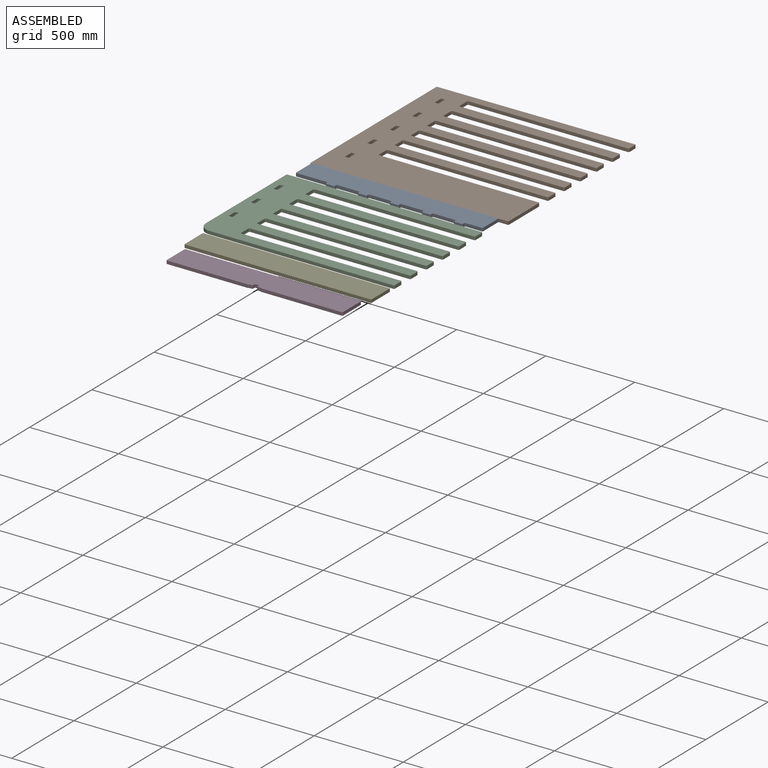
[diagram: assembled view]
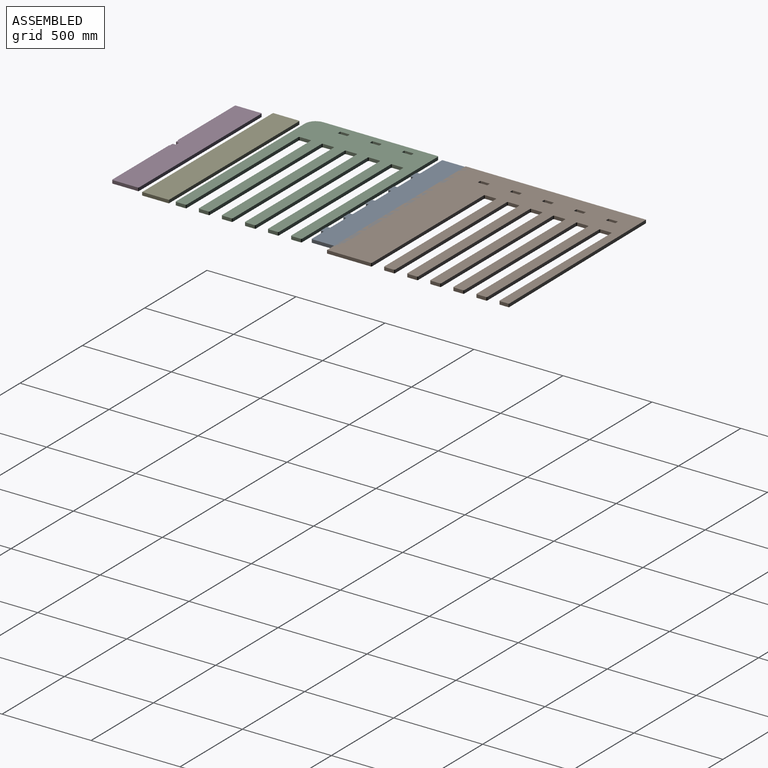
[diagram: assembled view, second angle]
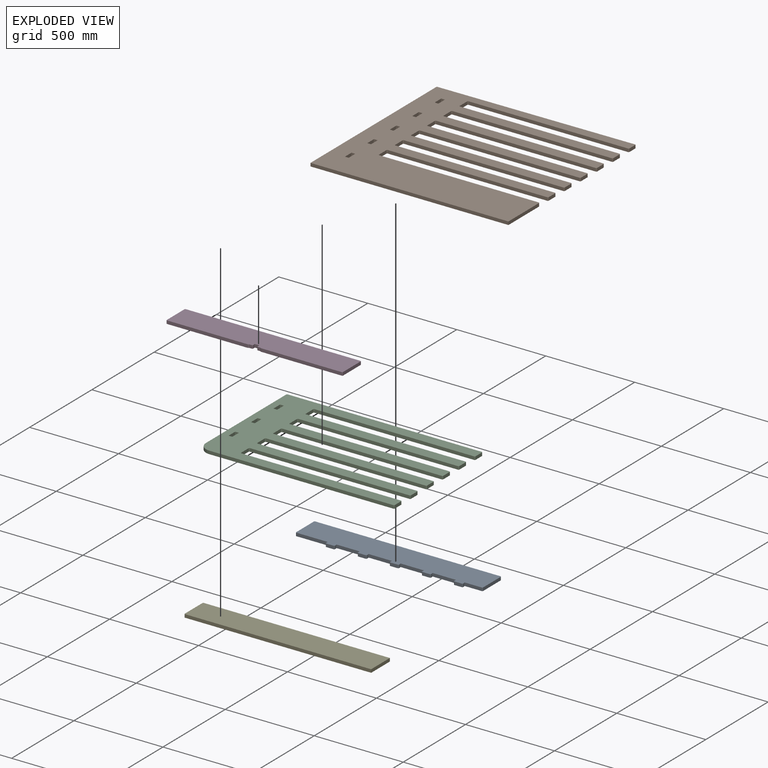
[diagram: exploded view]
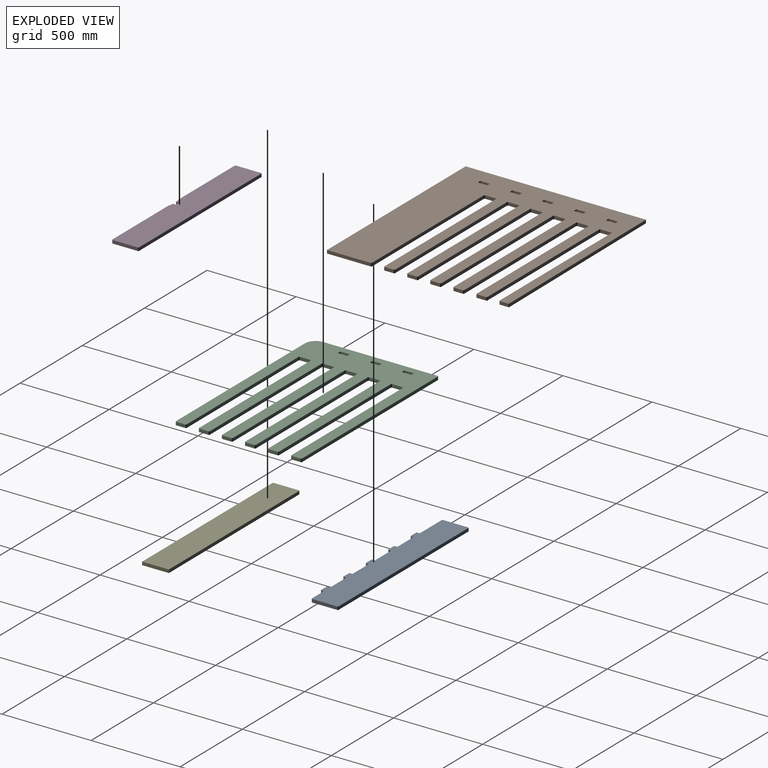
[diagram: exploded view, second angle]
ASSEMBLY  parts=5 mates=3
PART A: 50 faces, bbox 1050x18x168 mm
  f0: plane 18x12.5mm, normal (1,0,0), area 225mm2, adj f19,f20,f34,f36
  f1: plane 18x12.5mm, normal (-1,0,0), area 225mm2, adj f19,f20,f35,f37
  f2: plane 18x12.5mm, normal (-1,0,0), area 225mm2, adj f19,f20,f32,f39
  f3: plane 18x12.5mm, normal (1,0,0), area 225mm2, adj f19,f20,f33,f38
  f4: plane 18x12.5mm, normal (-1,0,0), area 225mm2, adj f19,f20,f30,f41
  f5: plane 18x12.5mm, normal (1,0,0), area 225mm2, adj f19,f20,f31,f40
  f6: plane 18x12.5mm, normal (-1,0,0), area 225mm2, adj f19,f20,f28,f45
  f7: plane 18x12.5mm, normal (1,0,0), area 225mm2, adj f19,f20,f29,f44
  f8: plane 18x12.5mm, normal (-1,0,0), area 225mm2, adj f19,f20,f26,f43
  f9: plane 18x12.5mm, normal (1,0,0), area 225mm2, adj f19,f20,f27,f42
  f10: plane 174.5x18mm, normal (0,0,1), area 3141mm2, adj f19,f20,f26,f48
  f11: plane 127x18mm, normal (0,0,1), area 2286mm2, adj f19,f20,f27,f28
  f12: plane 127x18mm, normal (0,0,1), area 2286mm2, adj f19,f20,f29,f30
  f13: plane 127x18mm, normal (0,0,1), area 2286mm2, adj f19,f20,f31,f32
  f14: plane 127x18mm, normal (0,0,1), area 2286mm2, adj f19,f20,f33,f35
  f15: plane 142x18mm, normal (1,0,0), area 2556mm2, adj f19,f20,f47,f49
  f16: plane 94.5x18mm, normal (0,0,1), area 1701mm2, adj f19,f20,f34,f49
  f17: plane 142x18mm, normal (-1,0,0), area 2556mm2, adj f19,f20,f46,f48
  f18: plane 1042x18mm, normal (0,0,-1), area 18756mm2, adj f19,f20,f46,f47
  f19: plane 1050x168mm, normal (0,1,0), area 161956.8mm2, adj f0,f1,f2,f3,f4,f5,f6,f7
  f20: plane 1050x168mm, normal (0,-1,0), area 161956.8mm2, adj f0,f1,f2,f3,f4,f5,f6,f7
  f21: plane 42x18mm, normal (0,0,1), area 756mm2, adj f19,f20,f42,f43
  f22: plane 42x18mm, normal (0,0,1), area 756mm2, adj f19,f20,f44,f45
  f23: plane 42x18mm, normal (0,0,1), area 756mm2, adj f19,f20,f40,f41
  f24: plane 42x18mm, normal (0,0,1), area 756mm2, adj f19,f20,f38,f39
  f25: plane 42x18mm, normal (0,0,1), area 756mm2, adj f19,f20,f36,f37
  f26: cylinder r=1.5mm len=18mm, axis (0,1,0), area 42.4mm2, adj f8,f10,f19,f20
  f27: cylinder r=1.5mm len=18mm, axis (0,-1,0), area 42.4mm2, adj f9,f11,f19,f20
  f28: cylinder r=1.5mm len=18mm, axis (0,1,0), area 42.4mm2, adj f6,f11,f19,f20
  f29: cylinder r=1.5mm len=18mm, axis (0,-1,0), area 42.4mm2, adj f7,f12,f19,f20
  f30: cylinder r=1.5mm len=18mm, axis (0,1,0), area 42.4mm2, adj f4,f12,f19,f20
  f31: cylinder r=1.5mm len=18mm, axis (0,-1,0), area 42.4mm2, adj f5,f13,f19,f20
  f32: cylinder r=1.5mm len=18mm, axis (0,1,0), area 42.4mm2, adj f2,f13,f19,f20
  f33: cylinder r=1.5mm len=18mm, axis (0,-1,0), area 42.4mm2, adj f3,f14,f19,f20
  f34: cylinder r=1.5mm len=18mm, axis (0,-1,0), area 42.4mm2, adj f0,f16,f19,f20
  f35: cylinder r=1.5mm len=18mm, axis (0,1,0), area 42.4mm2, adj f1,f14,f19,f20
  f36: cylinder r=4mm len=18mm, axis (0,-1,0), area 113.1mm2, adj f0,f19,f20,f25
  f37: cylinder r=4mm len=18mm, axis (0,1,0), area 113.1mm2, adj f1,f19,f20,f25
  f38: cylinder r=4mm len=18mm, axis (0,-1,0), area 113.1mm2, adj f3,f19,f20,f24
  f39: cylinder r=4mm len=18mm, axis (0,1,0), area 113.1mm2, adj f2,f19,f20,f24
  f40: cylinder r=4mm len=18mm, axis (0,-1,0), area 113.1mm2, adj f5,f19,f20,f23
  f41: cylinder r=4mm len=18mm, axis (0,1,0), area 113.1mm2, adj f4,f19,f20,f23
  f42: cylinder r=4mm len=18mm, axis (0,-1,0), area 113.1mm2, adj f9,f19,f20,f21
  f43: cylinder r=4mm len=18mm, axis (0,1,0), area 113.1mm2, adj f8,f19,f20,f21
  f44: cylinder r=4mm len=18mm, axis (0,-1,0), area 113.1mm2, adj f7,f19,f20,f22
  f45: cylinder r=4mm len=18mm, axis (0,1,0), area 113.1mm2, adj f6,f19,f20,f22
  f46: cylinder r=4mm len=18mm, axis (0,1,0), area 113.1mm2, adj f17,f18,f19,f20
  f47: cylinder r=4mm len=18mm, axis (0,-1,0), area 113.1mm2, adj f15,f18,f19,f20
  f48: cylinder r=4mm len=18mm, axis (0,-1,0), area 113.1mm2, adj f10,f17,f19,f20
  f49: cylinder r=4mm len=18mm, axis (0,1,0), area 113.1mm2, adj f15,f16,f19,f20
PART B: 95 faces, bbox 1022x1112.5x18 mm
  f0: plane 1112.5x1022.04mm, normal (0,0,1), area 752829.8mm2, adj f2,f3,f4,f5,f6,f7,f8,f9
  f1: plane 1112.5x1022.04mm, normal (0,0,-1), area 752829.8mm2, adj f2,f3,f4,f5,f6,f7,f8,f9
  f2: plane 46.7x18mm, normal (0,1,0), area 840.7mm2, adj f0,f1,f3,f91
  f3: cylinder r=5mm len=18mm, axis (0,0,-1), area 141.4mm2, adj f0,f1,f2,f4
  f4: plane 895.74x18mm, normal (-1,0,0), area 16123.4mm2, adj f0,f1,f3,f5
  f5: cylinder r=5mm len=18mm, axis (0,0,-1), area 141.4mm2, adj f0,f1,f4,f6
  f6: plane 58.8x18mm, normal (0,1,0), area 1058.4mm2, adj f0,f1,f5,f7
  f7: cylinder r=5mm len=18mm, axis (0,0,-1), area 141.4mm2, adj f0,f1,f6,f8
  f8: plane 895.74x18mm, normal (1,0,0), area 16123.4mm2, adj f0,f1,f7,f9
  f9: cylinder r=5mm len=18mm, axis (0,0,-1), area 141.4mm2, adj f0,f1,f8,f10
  f10: plane 50.8x18mm, normal (0,1,0), area 914.4mm2, adj f0,f1,f9,f11
  f11: cylinder r=5mm len=18mm, axis (0,0,-1), area 141.4mm2, adj f0,f1,f10,f12
  f12: plane 895.74x18mm, normal (-1,0,0), area 16123.4mm2, adj f0,f1,f11,f13
  f13: cylinder r=5mm len=18mm, axis (0,0,-1), area 141.4mm2, adj f0,f1,f12,f14
  f14: plane 58.8x18mm, normal (0,1,0), area 1058.4mm2, adj f0,f1,f13,f15
  f15: cylinder r=5mm len=18mm, axis (0,0,-1), area 141.4mm2, adj f0,f1,f14,f16
  f16: plane 895.74x18mm, normal (1,0,0), area 16123.4mm2, adj f0,f1,f15,f17
  f17: cylinder r=5mm len=18mm, axis (0,0,-1), area 141.4mm2, adj f0,f1,f16,f18
  f18: plane 50.8x18mm, normal (0,1,0), area 914.4mm2, adj f0,f1,f17,f19
  f19: cylinder r=5mm len=18mm, axis (0,0,-1), area 141.4mm2, adj f0,f1,f18,f20
  f20: plane 895.74x18mm, normal (-1,0,0), area 16123.4mm2, adj f0,f1,f19,f21
  f21: cylinder r=5mm len=18mm, axis (0,0,-1), area 141.4mm2, adj f0,f1,f20,f22
  f22: plane 58.8x18mm, normal (0,1,0), area 1058.4mm2, adj f0,f1,f21,f23
  f23: cylinder r=5mm len=18mm, axis (0,0,-1), area 141.4mm2, adj f0,f1,f22,f24
  f24: plane 895.74x18mm, normal (1,0,0), area 16123.4mm2, adj f0,f1,f23,f25
  f25: cylinder r=5mm len=18mm, axis (0,0,-1), area 141.4mm2, adj f0,f1,f24,f26
  f26: plane 50.8x18mm, normal (0,1,0), area 914.4mm2, adj f0,f1,f25,f27
  f27: cylinder r=5mm len=18mm, axis (0,0,-1), area 141.4mm2, adj f0,f1,f26,f28
  f28: plane 895.74x18mm, normal (-1,0,0), area 16123.4mm2, adj f0,f1,f27,f29
  f29: cylinder r=5mm len=18mm, axis (0,0,-1), area 141.4mm2, adj f0,f1,f28,f30
  f30: plane 58.8x18mm, normal (0,1,0), area 1058.4mm2, adj f0,f1,f29,f31
  f31: cylinder r=5mm len=18mm, axis (0,0,-1), area 141.4mm2, adj f0,f1,f30,f32
  f32: plane 895.74x18mm, normal (1,0,0), area 16123.4mm2, adj f0,f1,f31,f33
  f33: cylinder r=5mm len=18mm, axis (0,0,-1), area 141.4mm2, adj f0,f1,f32,f34
  f34: plane 50.8x18mm, normal (0,1,0), area 914.4mm2, adj f0,f1,f33,f35
  f35: cylinder r=5mm len=18mm, axis (0,0,-1), area 141.4mm2, adj f0,f1,f34,f36
  f36: plane 895.74x18mm, normal (-1,0,0), area 16123.4mm2, adj f0,f1,f35,f37
  f37: cylinder r=5mm len=18mm, axis (0,0,-1), area 141.4mm2, adj f0,f1,f36,f38
  f38: plane 58.8x18mm, normal (0,1,0), area 1058.4mm2, adj f0,f1,f37,f39
  f39: cylinder r=5mm len=18mm, axis (0,0,-1), area 141.4mm2, adj f0,f1,f38,f40
  f40: plane 895.74x18mm, normal (1,0,0), area 16123.4mm2, adj f0,f1,f39,f41
  f41: cylinder r=5mm len=18mm, axis (0,0,-1), area 141.4mm2, adj f0,f1,f40,f42
  f42: plane 50.8x18mm, normal (0,1,0), area 914.4mm2, adj f0,f1,f41,f92
  f43: plane 895.74x18mm, normal (-1,0,0), area 16123.4mm2, adj f0,f1,f44,f92
  f44: cylinder r=5mm len=18mm, axis (0,0,-1), area 141.4mm2, adj f0,f1,f43,f45
  f45: plane 58.8x18mm, normal (0,1,0), area 1058.4mm2, adj f0,f1,f44,f46
  f46: cylinder r=5mm len=18mm, axis (0,0,-1), area 141.4mm2, adj f0,f1,f45,f47
  f47: plane 895.74x18mm, normal (1,0,0), area 16123.4mm2, adj f0,f1,f46,f48
  f48: cylinder r=5mm len=18mm, axis (0,0,-1), area 141.4mm2, adj f0,f1,f47,f49
  f49: plane 245x18mm, normal (0,1,0), area 4410mm2, adj f0,f1,f48,f93
  f50: plane 1013.5x18mm, normal (0,-1,0), area 18243.1mm2, adj f0,f1,f93,f94
  f51: plane 18x18mm, normal (1,0,0), area 324mm2, adj f0,f1,f83,f86
  f52: plane 50x18mm, normal (0,1,0), area 900mm2, adj f0,f1,f83,f84
  f53: plane 18x18mm, normal (-1,0,0), area 324mm2, adj f0,f1,f84,f85
  f54: plane 50x18mm, normal (0,-1,0), area 900mm2, adj f0,f1,f85,f86
  f55: plane 18x18mm, normal (1,0,0), area 324mm2, adj f0,f1,f79,f82
  f56: plane 50x18mm, normal (0,1,0), area 900mm2, adj f0,f1,f81,f82
  f57: plane 18x18mm, normal (-1,0,0), area 324mm2, adj f0,f1,f80,f81
  f58: plane 50x18mm, normal (0,-1,0), area 900mm2, adj f0,f1,f79,f80
  f59: plane 18x18mm, normal (1,0,0), area 324mm2, adj f0,f1,f75,f78
  f60: plane 50x18mm, normal (0,1,0), area 900mm2, adj f0,f1,f77,f78
  f61: plane 18x18mm, normal (-1,0,0), area 324mm2, adj f0,f1,f76,f77
  f62: plane 50x18mm, normal (0,-1,0), area 900mm2, adj f0,f1,f75,f76
  f63: plane 18x18mm, normal (-1,0,0), area 324mm2, adj f0,f1,f71,f74
  f64: plane 50x18mm, normal (0,-1,0), area 900mm2, adj f0,f1,f73,f74
  f65: plane 18x18mm, normal (1,0,0), area 324mm2, adj f0,f1,f72,f73
  f66: plane 50x18mm, normal (0,1,0), area 900mm2, adj f0,f1,f71,f72
  f67: plane 18x18mm, normal (1,0,0), area 324mm2, adj f0,f1,f87,f90
  f68: plane 50x18mm, normal (0,1,0), area 900mm2, adj f0,f1,f89,f90
  f69: plane 18x18mm, normal (-1,0,0), area 324mm2, adj f0,f1,f88,f89
  f70: plane 50x18mm, normal (0,-1,0), area 900mm2, adj f0,f1,f87,f88
  f71: cylinder r=1.5mm len=18mm, axis (0,0,1), area 42.4mm2, adj f0,f1,f63,f66
  f72: cylinder r=1.5mm len=18mm, axis (0,0,-1), area 42.4mm2, adj f0,f1,f65,f66
  f73: cylinder r=1.5mm len=18mm, axis (0,0,1), area 42.4mm2, adj f0,f1,f64,f65
  f74: cylinder r=1.5mm len=18mm, axis (0,0,-1), area 42.4mm2, adj f0,f1,f63,f64
  f75: cylinder r=1.5mm len=18mm, axis (0,0,1), area 42.4mm2, adj f0,f1,f59,f62
  f76: cylinder r=1.5mm len=18mm, axis (0,0,-1), area 42.4mm2, adj f0,f1,f61,f62
  f77: cylinder r=1.5mm len=18mm, axis (0,0,1), area 42.4mm2, adj f0,f1,f60,f61
  f78: cylinder r=1.5mm len=18mm, axis (0,0,-1), area 42.4mm2, adj f0,f1,f59,f60
  f79: cylinder r=1.5mm len=18mm, axis (0,0,1), area 42.4mm2, adj f0,f1,f55,f58
  f80: cylinder r=1.5mm len=18mm, axis (0,0,-1), area 42.4mm2, adj f0,f1,f57,f58
  f81: cylinder r=1.5mm len=18mm, axis (0,0,1), area 42.4mm2, adj f0,f1,f56,f57
  f82: cylinder r=1.5mm len=18mm, axis (0,0,-1), area 42.4mm2, adj f0,f1,f55,f56
  f83: cylinder r=1.5mm len=18mm, axis (0,0,-1), area 42.4mm2, adj f0,f1,f51,f52
  f84: cylinder r=1.5mm len=18mm, axis (0,0,1), area 42.4mm2, adj f0,f1,f52,f53
  f85: cylinder r=1.5mm len=18mm, axis (0,0,-1), area 42.4mm2, adj f0,f1,f53,f54
  f86: cylinder r=1.5mm len=18mm, axis (0,0,1), area 42.4mm2, adj f0,f1,f51,f54
  f87: cylinder r=1.5mm len=18mm, axis (0,0,1), area 42.4mm2, adj f0,f1,f67,f70
  f88: cylinder r=1.5mm len=18mm, axis (0,0,-1), area 42.4mm2, adj f0,f1,f69,f70
  f89: cylinder r=1.5mm len=18mm, axis (0,0,1), area 42.4mm2, adj f0,f1,f68,f69
  f90: cylinder r=1.5mm len=18mm, axis (0,0,-1), area 42.4mm2, adj f0,f1,f67,f68
  f91: cylinder r=5mm len=18mm, axis (0,0,1), area 70.7mm2, adj f0,f1,f2,f94
  f92: cylinder r=5mm len=18mm, axis (0,0,-1), area 141.4mm2, adj f0,f1,f42,f43
  f93: plane 1112.5x18mm, normal (-1,0,0), area 20025mm2, adj f0,f1,f49,f50
  f94: plane 1111.04x18mm, normal (1,-0.01,0), area 19999.2mm2, adj f0,f1,f50,f91
PART C: 74 faces, bbox 708.8x1100x18 mm
  f0: plane 1100x708.8mm, normal (0,0,1), area 463810.5mm2, adj f2,f3,f4,f5,f6,f7,f8,f9
  f1: plane 1100x708.8mm, normal (0,0,-1), area 463810.5mm2, adj f2,f3,f4,f5,f6,f7,f8,f9
  f2: plane 896.24x18mm, normal (-1,0,0), area 16132.4mm2, adj f0,f1,f26,f48
  f3: plane 50.8x18mm, normal (0,-1,0), area 914.4mm2, adj f0,f1,f26,f27
  f4: plane 1090x18mm, normal (1,0,0), area 19620mm2, adj f0,f1,f27,f28
  f5: plane 643.8x18mm, normal (0,1,0), area 11588.4mm2, adj f0,f1,f28,f49
  f6: plane 1035x18mm, normal (-1,0,0), area 18630mm2, adj f0,f1,f29,f49
  f7: plane 50.8x18mm, normal (0,-1,0), area 914.4mm2, adj f0,f1,f29,f30
  f8: plane 896.24x18mm, normal (1,0,0), area 16132.4mm2, adj f0,f1,f30,f31
  f9: plane 58.8x18mm, normal (0,-1,0), area 1058.4mm2, adj f0,f1,f31,f32
  f10: plane 896.24x18mm, normal (-1,0,0), area 16132.4mm2, adj f0,f1,f32,f33
  f11: plane 50.8x18mm, normal (0,-1,0), area 914.4mm2, adj f0,f1,f33,f34
  f12: plane 896.24x18mm, normal (1,0,0), area 16132.4mm2, adj f0,f1,f34,f35
  f13: plane 58.8x18mm, normal (0,-1,0), area 1058.4mm2, adj f0,f1,f35,f36
  f14: plane 896.24x18mm, normal (-1,0,0), area 16132.4mm2, adj f0,f1,f36,f37
  f15: plane 50.8x18mm, normal (0,-1,0), area 914.4mm2, adj f0,f1,f37,f38
  f16: plane 896.24x18mm, normal (1,0,0), area 16132.4mm2, adj f0,f1,f38,f39
  f17: plane 58.8x18mm, normal (0,-1,0), area 1058.4mm2, adj f0,f1,f39,f40
  f18: plane 896.24x18mm, normal (-1,0,0), area 16132.4mm2, adj f0,f1,f40,f41
  f19: plane 50.8x18mm, normal (0,-1,0), area 914.4mm2, adj f0,f1,f41,f42
  f20: plane 896.24x18mm, normal (1,0,0), area 16132.4mm2, adj f0,f1,f42,f43
  f21: plane 58.8x18mm, normal (0,-1,0), area 1058.4mm2, adj f0,f1,f43,f44
  f22: plane 896.24x18mm, normal (-1,0,0), area 16132.4mm2, adj f0,f1,f44,f45
  f23: plane 50.8x18mm, normal (0,-1,0), area 914.4mm2, adj f0,f1,f45,f46
  f24: plane 896.24x18mm, normal (1,0,0), area 16132.4mm2, adj f0,f1,f46,f47
  f25: plane 58.8x18mm, normal (0,-1,0), area 1058.4mm2, adj f0,f1,f47,f48
  f26: cylinder r=5mm len=18mm, axis (0,0,1), area 141.4mm2, adj f0,f1,f2,f3
  f27: cylinder r=5mm len=18mm, axis (0,0,1), area 141.4mm2, adj f0,f1,f3,f4
  f28: cylinder r=5mm len=18mm, axis (0,0,-1), area 141.4mm2, adj f0,f1,f4,f5
  f29: cylinder r=5mm len=18mm, axis (0,0,-1), area 141.4mm2, adj f0,f1,f6,f7
  f30: cylinder r=5mm len=18mm, axis (0,0,-1), area 141.4mm2, adj f0,f1,f7,f8
  f31: cylinder r=5mm len=18mm, axis (0,0,1), area 141.4mm2, adj f0,f1,f8,f9
  f32: cylinder r=5mm len=18mm, axis (0,0,-1), area 141.4mm2, adj f0,f1,f9,f10
  f33: cylinder r=5mm len=18mm, axis (0,0,1), area 141.4mm2, adj f0,f1,f10,f11
  f34: cylinder r=5mm len=18mm, axis (0,0,-1), area 141.4mm2, adj f0,f1,f11,f12
  f35: cylinder r=5mm len=18mm, axis (0,0,1), area 141.4mm2, adj f0,f1,f12,f13
  f36: cylinder r=5mm len=18mm, axis (0,0,-1), area 141.4mm2, adj f0,f1,f13,f14
  f37: cylinder r=5mm len=18mm, axis (0,0,1), area 141.4mm2, adj f0,f1,f14,f15
  f38: cylinder r=5mm len=18mm, axis (0,0,-1), area 141.4mm2, adj f0,f1,f15,f16
  f39: cylinder r=5mm len=18mm, axis (0,0,1), area 141.4mm2, adj f0,f1,f16,f17
  f40: cylinder r=5mm len=18mm, axis (0,0,-1), area 141.4mm2, adj f0,f1,f17,f18
  f41: cylinder r=5mm len=18mm, axis (0,0,1), area 141.4mm2, adj f0,f1,f18,f19
  f42: cylinder r=5mm len=18mm, axis (0,0,-1), area 141.4mm2, adj f0,f1,f19,f20
  f43: cylinder r=5mm len=18mm, axis (0,0,1), area 141.4mm2, adj f0,f1,f20,f21
  f44: cylinder r=5mm len=18mm, axis (0,0,-1), area 141.4mm2, adj f0,f1,f21,f22
  f45: cylinder r=5mm len=18mm, axis (0,0,1), area 141.4mm2, adj f0,f1,f22,f23
  f46: cylinder r=5mm len=18mm, axis (0,0,-1), area 141.4mm2, adj f0,f1,f23,f24
  f47: cylinder r=5mm len=18mm, axis (0,0,1), area 141.4mm2, adj f0,f1,f24,f25
  f48: cylinder r=5mm len=18mm, axis (0,0,-1), area 141.4mm2, adj f0,f1,f2,f25
  f49: cylinder r=60mm len=60mm, axis (0,0,1), area 1696.5mm2, adj f0,f1,f5,f6
  f50: plane 50x18mm, normal (0,-1,0), area 900mm2, adj f0,f1,f62,f65
  f51: plane 18x18mm, normal (1,0,0), area 324mm2, adj f0,f1,f64,f65
  f52: plane 50x18mm, normal (0,1,0), area 900mm2, adj f0,f1,f63,f64
  f53: plane 18x18mm, normal (-1,0,0), area 324mm2, adj f0,f1,f62,f63
  f54: plane 50x18mm, normal (0,-1,0), area 900mm2, adj f0,f1,f66,f69
  f55: plane 18x18mm, normal (1,0,0), area 324mm2, adj f0,f1,f66,f67
  f56: plane 50x18mm, normal (0,1,0), area 900mm2, adj f0,f1,f67,f68
  f57: plane 18x18mm, normal (-1,0,0), area 324mm2, adj f0,f1,f68,f69
  f58: plane 50x18mm, normal (0,1,0), area 900mm2, adj f0,f1,f70,f73
  f59: plane 18x18mm, normal (-1,0,0), area 324mm2, adj f0,f1,f72,f73
  f60: plane 50x18mm, normal (0,-1,0), area 900mm2, adj f0,f1,f71,f72
  f61: plane 18x18mm, normal (1,0,0), area 324mm2, adj f0,f1,f70,f71
  f62: cylinder r=1.5mm len=18mm, axis (0,0,1), area 42.4mm2, adj f0,f1,f50,f53
  f63: cylinder r=1.5mm len=18mm, axis (0,0,-1), area 42.4mm2, adj f0,f1,f52,f53
  f64: cylinder r=1.5mm len=18mm, axis (0,0,1), area 42.4mm2, adj f0,f1,f51,f52
  f65: cylinder r=1.5mm len=18mm, axis (0,0,-1), area 42.4mm2, adj f0,f1,f50,f51
  f66: cylinder r=1.5mm len=18mm, axis (0,0,-1), area 42.4mm2, adj f0,f1,f54,f55
  f67: cylinder r=1.5mm len=18mm, axis (0,0,1), area 42.4mm2, adj f0,f1,f55,f56
  f68: cylinder r=1.5mm len=18mm, axis (0,0,-1), area 42.4mm2, adj f0,f1,f56,f57
  f69: cylinder r=1.5mm len=18mm, axis (0,0,1), area 42.4mm2, adj f0,f1,f54,f57
  f70: cylinder r=1.5mm len=18mm, axis (0,0,1), area 42.4mm2, adj f0,f1,f58,f61
  f71: cylinder r=1.5mm len=18mm, axis (0,0,-1), area 42.4mm2, adj f0,f1,f60,f61
  f72: cylinder r=1.5mm len=18mm, axis (0,0,1), area 42.4mm2, adj f0,f1,f59,f60
  f73: cylinder r=1.5mm len=18mm, axis (0,0,-1), area 42.4mm2, adj f0,f1,f58,f59
PART D: 24 faces, bbox 18x990x150 mm
  f0: plane 454.03x18mm, normal (0,0,1), area 8172.6mm2, adj f1,f2,f14,f19
  f1: plane 990x150mm, normal (-1,0,0), area 147793.2mm2, adj f0,f3,f4,f5,f6,f7,f8,f9
  f2: plane 990x150mm, normal (1,0,0), area 147793.2mm2, adj f0,f3,f4,f5,f6,f7,f8,f9
  f3: plane 454.03x18mm, normal (0,0,1), area 8172.6mm2, adj f1,f2,f15,f18
  f4: plane 982x18mm, normal (0,0,-1), area 17676mm2, adj f1,f2,f12,f13
  f5: plane 18x15.35mm, normal (0,0,1), area 276.2mm2, adj f1,f2,f17,f22
  f6: plane 18x12.5mm, normal (0,-1,0), area 225mm2, adj f1,f2,f17,f21
  f7: plane 22x18mm, normal (0,0,1), area 396mm2, adj f1,f2,f20,f21
  f8: plane 18x12.5mm, normal (0,1,0), area 225mm2, adj f1,f2,f16,f20
  f9: plane 18x15.35mm, normal (0,0,1), area 276.2mm2, adj f1,f2,f16,f23
  f10: plane 142x18mm, normal (0,1,0), area 2556mm2, adj f1,f2,f13,f15
  f11: plane 142x18mm, normal (0,-1,0), area 2556mm2, adj f1,f2,f12,f14
  f12: cylinder r=4mm len=18mm, axis (1,0,0), area 113.1mm2, adj f1,f2,f4,f11
  f13: cylinder r=4mm len=18mm, axis (1,0,0), area 113.1mm2, adj f1,f2,f4,f10
  f14: cylinder r=4mm len=18mm, axis (-1,0,0), area 113.1mm2, adj f0,f1,f2,f11
  f15: cylinder r=4mm len=18mm, axis (-1,0,0), area 113.1mm2, adj f1,f2,f3,f10
  f16: cylinder r=4mm len=18mm, axis (-1,0,0), area 113.1mm2, adj f1,f2,f8,f9
  f17: cylinder r=4mm len=18mm, axis (-1,0,0), area 113.1mm2, adj f1,f2,f5,f6
  f18: cylinder r=4mm len=18mm, axis (-1,0,0), area 86.3mm2, adj f1,f2,f3,f22
  f19: cylinder r=4mm len=18mm, axis (1,0,0), area 86.3mm2, adj f0,f1,f2,f23
  f20: cylinder r=1.5mm len=18mm, axis (1,0,0), area 42.4mm2, adj f1,f2,f7,f8
  f21: cylinder r=1.5mm len=18mm, axis (1,0,0), area 42.4mm2, adj f1,f2,f6,f7
  f22: cylinder r=1.5mm len=18mm, axis (-1,0,0), area 32.4mm2, adj f1,f2,f5,f18
  f23: cylinder r=1.5mm len=18mm, axis (1,0,0), area 32.4mm2, adj f1,f2,f9,f19
PART E: 8 faces, bbox 1050x18x150 mm
  f0: plane 142x18mm, normal (1,0,0), area 2556mm2, adj f4,f5,f6,f7
  f1: plane 1046x18mm, normal (0,0,1), area 18828mm2, adj f2,f4,f5,f6
  f2: plane 150x18mm, normal (-1,0,0), area 2700mm2, adj f1,f3,f4,f5
  f3: plane 1046x18mm, normal (0,0,-1), area 18828mm2, adj f2,f4,f5,f7
  f4: plane 1050x150mm, normal (0,-1,0), area 157493.1mm2, adj f0,f1,f2,f3,f6,f7
  f5: plane 1050x150mm, normal (0,1,0), area 157493.1mm2, adj f0,f1,f2,f3,f6,f7
  f6: cylinder r=4mm len=18mm, axis (0,-1,0), area 113.1mm2, adj f0,f1,f4,f5
  f7: cylinder r=4mm len=18mm, axis (0,1,0), area 113.1mm2, adj f0,f3,f4,f5
PLACE A rot(axis=(1,0,0),90deg) t=(-56.2,-1254.52,494.56)mm
PLACE B rot(axis=(-0.71,-0.71,0),180deg) t=(-474.22,-298.12,593.16)mm
PLACE C rot(axis=(0,0,1),90deg) t=(-663.35,-1425.43,24.16)mm
PLACE D rot(axis=(0.58,-0.58,0.58),120deg) t=(122.74,-2138.83,1170.25)mm
PLACE E rot(axis=(0,-0.71,-0.71),180deg) t=(-1283.36,-2373.66,276.56)mm
MATE fastened E.f5 <-> C.f0  axis (0,0,1) through (-654.48,-2205.15,339.16)mm
MATE fastened C.f0 <-> A.f19  axis (0,0,1) through (-681.98,-1460.35,339.16)mm
MATE fastened D.f2 <-> E.f5  axis (0,0,1) through (-654.48,-2395.15,339.16)mm
